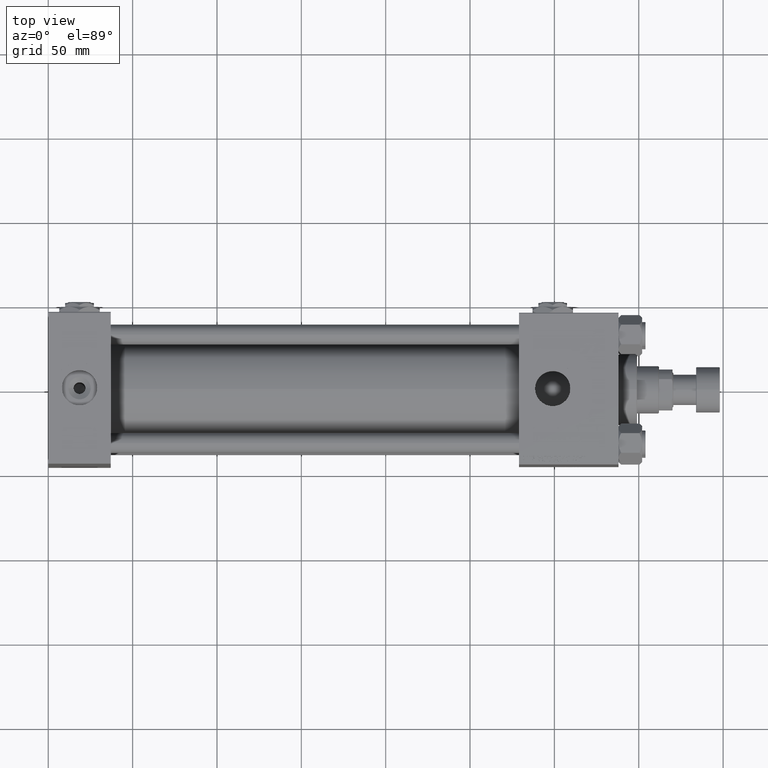
[diagram: clean part render]
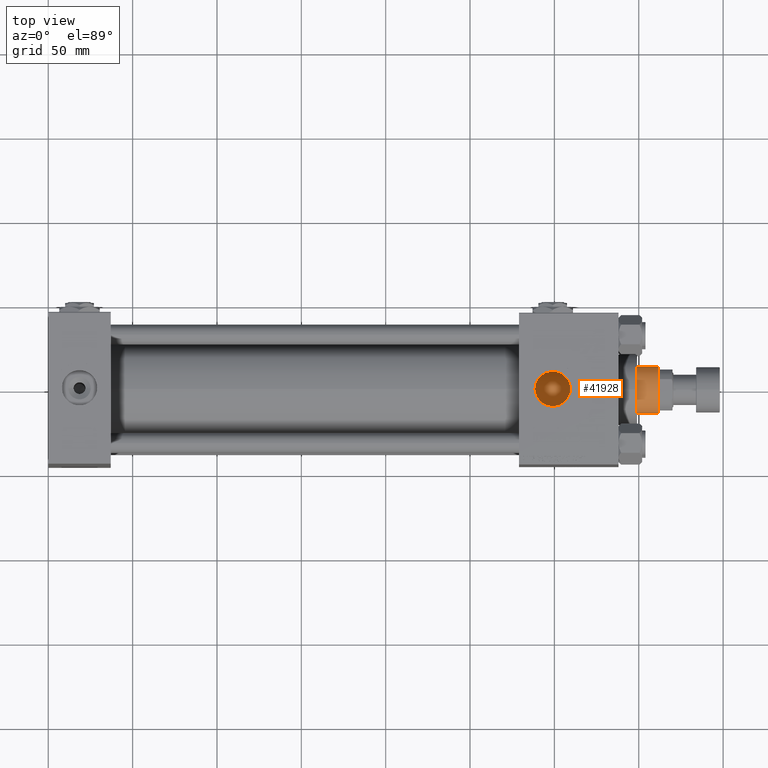
[diagram: same view with one face highlighted and labeled with its STEP entity id]
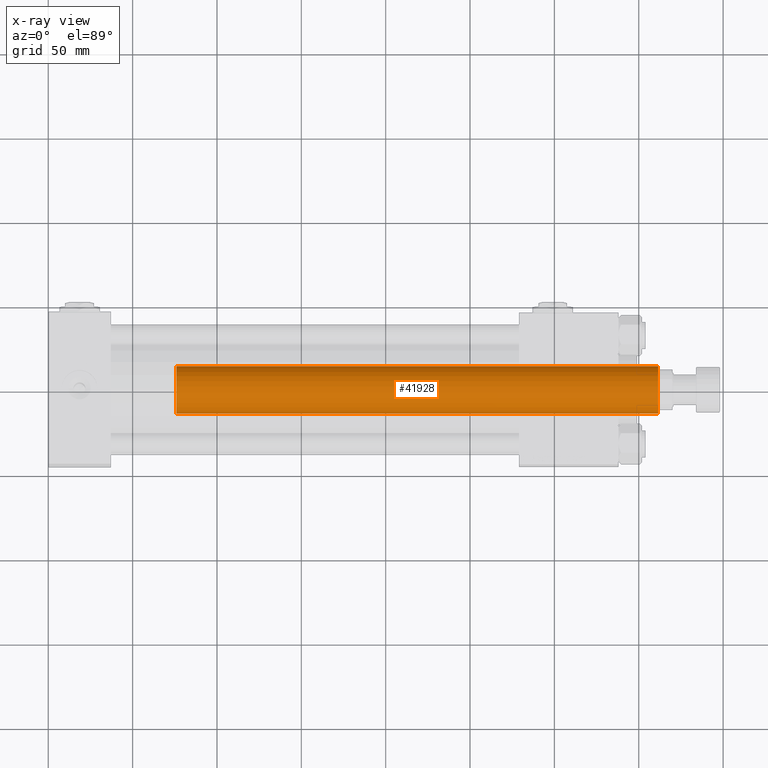
[diagram: x-ray of the same camera — body ghosted, the highlighted face saturated]
A machine part, top view. The second image highlights one B-rep face of the part: STEP entity #41928.
The next image is the same camera in x-ray: the body ghosted, the highlighted face saturated — about 0% of this face is hidden behind the body in this view.
In plain terms, the highlighted cylindrical surface (edge-blend (fillet) strip) has radius 14 mm, axis along (-1, 0, 0).
Its self-contained STEP definition (entity closure, byte-faithful):
#3253 = DIRECTION ( 'NONE',  ( 1.000000000000000000, 0.000000000000000000, 0.000000000000000000 ) ) ;
#3353 = ORIENTED_EDGE ( 'NONE', *, *, #10038, .T. ) ;
#4923 = VERTEX_POINT ( 'NONE', #39907 ) ;
#6214 = VERTEX_POINT ( 'NONE', #6735 ) ;
#6728 = DIRECTION ( 'NONE',  ( 0.000000000000000000, 0.000000000000000000, -1.000000000000000000 ) ) ;
#6735 = CARTESIAN_POINT ( 'NONE',  ( -14.00000000000000178, 0.000000000000000000, 39.00000000000000000 ) ) ;
#8392 = ORIENTED_EDGE ( 'NONE', *, *, #44529, .T. ) ;
#9124 = LINE ( 'NONE', #29846, #23094 ) ;
#10029 = CIRCLE ( 'NONE', #50756, 14.00000000000000178 ) ;
#10038 = EDGE_CURVE ( 'NONE', #4923, #42108, #10029, .T. ) ;
#10707 = CIRCLE ( 'NONE', #17509, 14.00000000000000178 ) ;
#14221 = DIRECTION ( 'NONE',  ( 0.000000000000000000, 0.000000000000000000, 1.000000000000000000 ) ) ;
#14486 = FACE_OUTER_BOUND ( 'NONE', #43232, .T. ) ;
#16216 = DIRECTION ( 'NONE',  ( -0.000000000000000000, -0.000000000000000000, -1.000000000000000000 ) ) ;
#17509 = AXIS2_PLACEMENT_3D ( 'NONE', #22709, #14221, #38395 ) ;
#17977 = EDGE_CURVE ( 'NONE', #4923, #22963, #23406, .T. ) ;
#22197 = DIRECTION ( 'NONE',  ( -1.000000000000000000, 0.000000000000000000, 0.000000000000000000 ) ) ;
#22709 = CARTESIAN_POINT ( 'NONE',  ( 0.000000000000000000, 0.000000000000000000, 39.00000000000000000 ) ) ;
#22963 = VERTEX_POINT ( 'NONE', #29330 ) ;
#22970 = CARTESIAN_POINT ( 'NONE',  ( -14.00000000000000178, 0.000000000000000000, 324.4999999999999432 ) ) ;
#23006 = EDGE_CURVE ( 'NONE', #42108, #6214, #9124, .T. ) ;
#23094 = VECTOR ( 'NONE', #25344, 1000.000000000000000 ) ;
#23406 = LINE ( 'NONE', #23663, #34082 ) ;
#23663 = CARTESIAN_POINT ( 'NONE',  ( 14.00000000000000178, 1.714505518806294835E-15, 324.9999999999999432 ) ) ;
#25344 = DIRECTION ( 'NONE',  ( -0.000000000000000000, -0.000000000000000000, -1.000000000000000000 ) ) ;
#26430 = CARTESIAN_POINT ( 'NONE',  ( 0.000000000000000000, 0.000000000000000000, 324.9999999999999432 ) ) ;
#29330 = CARTESIAN_POINT ( 'NONE',  ( 14.00000000000000178, 1.714505518806294835E-15, 39.00000000000000000 ) ) ;
#29377 = ORIENTED_EDGE ( 'NONE', *, *, #17977, .F. ) ;
#29846 = CARTESIAN_POINT ( 'NONE',  ( -14.00000000000000178, 0.000000000000000000, 324.9999999999999432 ) ) ;
#34082 = VECTOR ( 'NONE', #16216, 1000.000000000000000 ) ;
#38395 = DIRECTION ( 'NONE',  ( 1.000000000000000000, 0.000000000000000000, 0.000000000000000000 ) ) ;
#39907 = CARTESIAN_POINT ( 'NONE',  ( 14.00000000000000178, 1.714505518806294835E-15, 324.4999999999999432 ) ) ;
#41879 = CYLINDRICAL_SURFACE ( 'NONE', #47117, 14.00000000000000178 ) ;
#41928 = ADVANCED_FACE ( 'NONE', ( #14486 ), #41879, .T. ) ;
#42108 = VERTEX_POINT ( 'NONE', #22970 ) ;
#43232 = EDGE_LOOP ( 'NONE', ( #29377, #3353, #46029, #8392 ) ) ;
#44529 = EDGE_CURVE ( 'NONE', #6214, #22963, #10707, .T. ) ;
#46029 = ORIENTED_EDGE ( 'NONE', *, *, #23006, .T. ) ;
#47117 = AXIS2_PLACEMENT_3D ( 'NONE', #26430, #50086, #22197 ) ;
#50086 = DIRECTION ( 'NONE',  ( -0.000000000000000000, -0.000000000000000000, -1.000000000000000000 ) ) ;
#50756 = AXIS2_PLACEMENT_3D ( 'NONE', #51361, #6728, #3253 ) ;
#51361 = CARTESIAN_POINT ( 'NONE',  ( 0.000000000000000000, 0.000000000000000000, 324.4999999999999432 ) ) ;